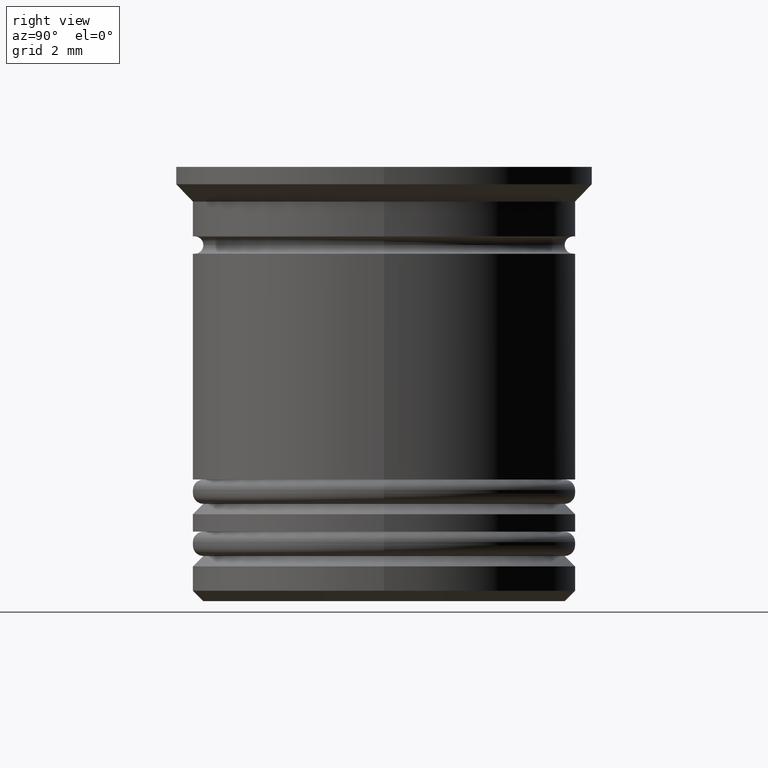
[diagram: clean part render]
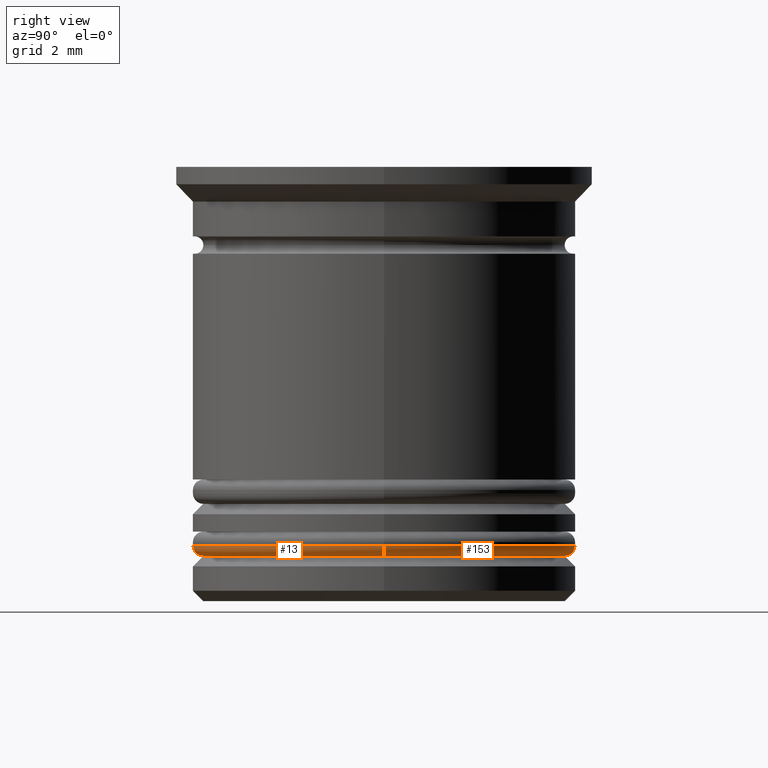
[diagram: same view with one multi-face feature highlighted, each face labeled with its STEP entity id]
A machine part, right view. The highlighted faces form ONE feature: a constant-radius fillet chain: 2 tangent blend faces with common blend radius 0.3 mm. The faces share edges in the B-rep.
Their STEP definitions:
[1] entity #153 (Torus):
#153 = ADVANCED_FACE ( 'NONE', ( #719 ), #682, .T. ) ;
#227 = AXIS2_PLACEMENT_3D ( 'NONE', #1064, #919, #305 ) ;
#231 = CIRCLE ( 'NONE', #1844, 0.2999999999999999334 ) ;
#240 = ORIENTED_EDGE ( 'NONE', *, *, #320, .F. ) ;
#281 = VERTEX_POINT ( 'NONE', #1227 ) ;
#299 = AXIS2_PLACEMENT_3D ( 'NONE', #1970, #1524, #1490 ) ;
#305 = DIRECTION ( 'NONE',  ( 1.000000000000000000, 0.000000000000000000, 0.000000000000000000 ) ) ;
#320 = EDGE_CURVE ( 'NONE', #705, #281, #1257, .T. ) ;
#324 = ORIENTED_EDGE ( 'NONE', *, *, #1382, .T. ) ;
#355 = DIRECTION ( 'NONE',  ( -1.000000000000000000, 1.224646799147353207E-16, 0.000000000000000000 ) ) ;
#532 = CARTESIAN_POINT ( 'NONE',  ( -5.200000000000001066, 6.368163355566238354E-16, -10.90000000000000746 ) ) ;
#583 = CARTESIAN_POINT ( 'NONE',  ( 0.000000000000000000, 0.000000000000000000, -10.90000000000000746 ) ) ;
#608 = CARTESIAN_POINT ( 'NONE',  ( 0.000000000000000000, 0.000000000000000000, -10.90000000000000746 ) ) ;
#632 = CARTESIAN_POINT ( 'NONE',  ( 5.500000000000001776, 0.000000000000000000, -10.90000000000000746 ) ) ;
#682 = TOROIDAL_SURFACE ( 'NONE', #1327, 5.200000000000001066, 0.2999999999999999889 ) ;
#705 = VERTEX_POINT ( 'NONE', #632 ) ;
#719 = FACE_OUTER_BOUND ( 'NONE', #1480, .T. ) ;
#767 = EDGE_CURVE ( 'NONE', #1261, #1372, #1966, .T. ) ;
#919 = DIRECTION ( 'NONE',  ( -0.000000000000000000, -0.000000000000000000, -1.000000000000000000 ) ) ;
#937 = CIRCLE ( 'NONE', #299, 0.2999999999999999334 ) ;
#1029 = EDGE_CURVE ( 'NONE', #1372, #705, #937, .T. ) ;
#1044 = DIRECTION ( 'NONE',  ( 0.000000000000000000, 0.000000000000000000, 1.000000000000000000 ) ) ;
#1064 = CARTESIAN_POINT ( 'NONE',  ( 0.000000000000000000, 0.000000000000000000, -11.20000000000000462 ) ) ;
#1089 = ORIENTED_EDGE ( 'NONE', *, *, #767, .F. ) ;
#1219 = ORIENTED_EDGE ( 'NONE', *, *, #1029, .F. ) ;
#1227 = CARTESIAN_POINT ( 'NONE',  ( -5.500000000000001776, 6.735557395310443009E-16, -10.90000000000000746 ) ) ;
#1257 = CIRCLE ( 'NONE', #1682, 5.500000000000001776 ) ;
#1261 = VERTEX_POINT ( 'NONE', #1597 ) ;
#1327 = AXIS2_PLACEMENT_3D ( 'NONE', #583, #1647, #1811 ) ;
#1372 = VERTEX_POINT ( 'NONE', #1607 ) ;
#1382 = EDGE_CURVE ( 'NONE', #1261, #281, #231, .T. ) ;
#1480 = EDGE_LOOP ( 'NONE', ( #1089, #324, #240, #1219 ) ) ;
#1490 = DIRECTION ( 'NONE',  ( 0.000000000000000000, 0.000000000000000000, -1.000000000000000000 ) ) ;
#1524 = DIRECTION ( 'NONE',  ( 0.000000000000000000, -1.000000000000000000, 0.000000000000000000 ) ) ;
#1597 = CARTESIAN_POINT ( 'NONE',  ( -5.200000000000001066, 6.551860375438340681E-16, -11.20000000000000462 ) ) ;
#1607 = CARTESIAN_POINT ( 'NONE',  ( 5.200000000000001066, 0.000000000000000000, -11.20000000000000462 ) ) ;
#1647 = DIRECTION ( 'NONE',  ( 0.000000000000000000, 0.000000000000000000, 1.000000000000000000 ) ) ;
#1664 = DIRECTION ( 'NONE',  ( 1.000000000000000000, 0.000000000000000000, 0.000000000000000000 ) ) ;
#1682 = AXIS2_PLACEMENT_3D ( 'NONE', #608, #1044, #1664 ) ;
#1737 = DIRECTION ( 'NONE',  ( 1.224646799147353207E-16, 1.000000000000000000, -0.000000000000000000 ) ) ;
#1811 = DIRECTION ( 'NONE',  ( 1.000000000000000000, 0.000000000000000000, 0.000000000000000000 ) ) ;
#1844 = AXIS2_PLACEMENT_3D ( 'NONE', #532, #1737, #355 ) ;
#1966 = CIRCLE ( 'NONE', #227, 5.200000000000001066 ) ;
#1970 = CARTESIAN_POINT ( 'NONE',  ( 5.200000000000001066, 0.000000000000000000, -10.90000000000000746 ) ) ;
[2] entity #13 (Torus):
#13 = ADVANCED_FACE ( 'NONE', ( #1422 ), #298, .T. ) ;
#16 = DIRECTION ( 'NONE',  ( 1.000000000000000000, 0.000000000000000000, 0.000000000000000000 ) ) ;
#47 = DIRECTION ( 'NONE',  ( -0.000000000000000000, -0.000000000000000000, -1.000000000000000000 ) ) ;
#231 = CIRCLE ( 'NONE', #1844, 0.2999999999999999334 ) ;
#250 = ORIENTED_EDGE ( 'NONE', *, *, #1029, .T. ) ;
#258 = DIRECTION ( 'NONE',  ( 1.000000000000000000, 0.000000000000000000, 0.000000000000000000 ) ) ;
#273 = DIRECTION ( 'NONE',  ( 0.000000000000000000, 0.000000000000000000, 1.000000000000000000 ) ) ;
#281 = VERTEX_POINT ( 'NONE', #1227 ) ;
#298 = TOROIDAL_SURFACE ( 'NONE', #908, 5.200000000000001066, 0.2999999999999999889 ) ;
#299 = AXIS2_PLACEMENT_3D ( 'NONE', #1970, #1524, #1490 ) ;
#355 = DIRECTION ( 'NONE',  ( -1.000000000000000000, 1.224646799147353207E-16, 0.000000000000000000 ) ) ;
#377 = DIRECTION ( 'NONE',  ( 1.000000000000000000, 0.000000000000000000, 0.000000000000000000 ) ) ;
#532 = CARTESIAN_POINT ( 'NONE',  ( -5.200000000000001066, 6.368163355566238354E-16, -10.90000000000000746 ) ) ;
#570 = CARTESIAN_POINT ( 'NONE',  ( 0.000000000000000000, 0.000000000000000000, -10.90000000000000746 ) ) ;
#632 = CARTESIAN_POINT ( 'NONE',  ( 5.500000000000001776, 0.000000000000000000, -10.90000000000000746 ) ) ;
#705 = VERTEX_POINT ( 'NONE', #632 ) ;
#908 = AXIS2_PLACEMENT_3D ( 'NONE', #1102, #955, #16 ) ;
#937 = CIRCLE ( 'NONE', #299, 0.2999999999999999334 ) ;
#955 = DIRECTION ( 'NONE',  ( 0.000000000000000000, 0.000000000000000000, 1.000000000000000000 ) ) ;
#958 = EDGE_LOOP ( 'NONE', ( #1667, #1927, #250, #991 ) ) ;
#968 = CARTESIAN_POINT ( 'NONE',  ( 0.000000000000000000, 0.000000000000000000, -11.20000000000000462 ) ) ;
#986 = EDGE_CURVE ( 'NONE', #281, #705, #1748, .T. ) ;
#991 = ORIENTED_EDGE ( 'NONE', *, *, #986, .F. ) ;
#1003 = AXIS2_PLACEMENT_3D ( 'NONE', #570, #273, #258 ) ;
#1029 = EDGE_CURVE ( 'NONE', #1372, #705, #937, .T. ) ;
#1102 = CARTESIAN_POINT ( 'NONE',  ( 0.000000000000000000, 0.000000000000000000, -10.90000000000000746 ) ) ;
#1227 = CARTESIAN_POINT ( 'NONE',  ( -5.500000000000001776, 6.735557395310443009E-16, -10.90000000000000746 ) ) ;
#1261 = VERTEX_POINT ( 'NONE', #1597 ) ;
#1372 = VERTEX_POINT ( 'NONE', #1607 ) ;
#1382 = EDGE_CURVE ( 'NONE', #1261, #281, #231, .T. ) ;
#1395 = EDGE_CURVE ( 'NONE', #1372, #1261, #1713, .T. ) ;
#1422 = FACE_OUTER_BOUND ( 'NONE', #958, .T. ) ;
#1490 = DIRECTION ( 'NONE',  ( 0.000000000000000000, 0.000000000000000000, -1.000000000000000000 ) ) ;
#1524 = DIRECTION ( 'NONE',  ( 0.000000000000000000, -1.000000000000000000, 0.000000000000000000 ) ) ;
#1597 = CARTESIAN_POINT ( 'NONE',  ( -5.200000000000001066, 6.551860375438340681E-16, -11.20000000000000462 ) ) ;
#1607 = CARTESIAN_POINT ( 'NONE',  ( 5.200000000000001066, 0.000000000000000000, -11.20000000000000462 ) ) ;
#1667 = ORIENTED_EDGE ( 'NONE', *, *, #1382, .F. ) ;
#1713 = CIRCLE ( 'NONE', #1972, 5.200000000000001066 ) ;
#1737 = DIRECTION ( 'NONE',  ( 1.224646799147353207E-16, 1.000000000000000000, -0.000000000000000000 ) ) ;
#1748 = CIRCLE ( 'NONE', #1003, 5.500000000000001776 ) ;
#1844 = AXIS2_PLACEMENT_3D ( 'NONE', #532, #1737, #355 ) ;
#1927 = ORIENTED_EDGE ( 'NONE', *, *, #1395, .F. ) ;
#1970 = CARTESIAN_POINT ( 'NONE',  ( 5.200000000000001066, 0.000000000000000000, -10.90000000000000746 ) ) ;
#1972 = AXIS2_PLACEMENT_3D ( 'NONE', #968, #47, #377 ) ;